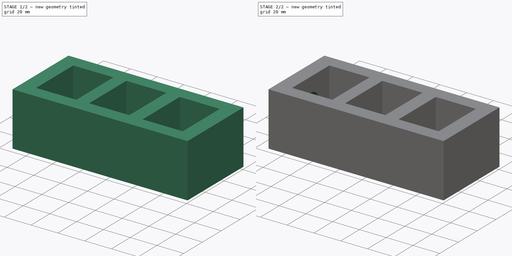
[diagram: build sequence overview — one tinted view per stage of 2, left to right]
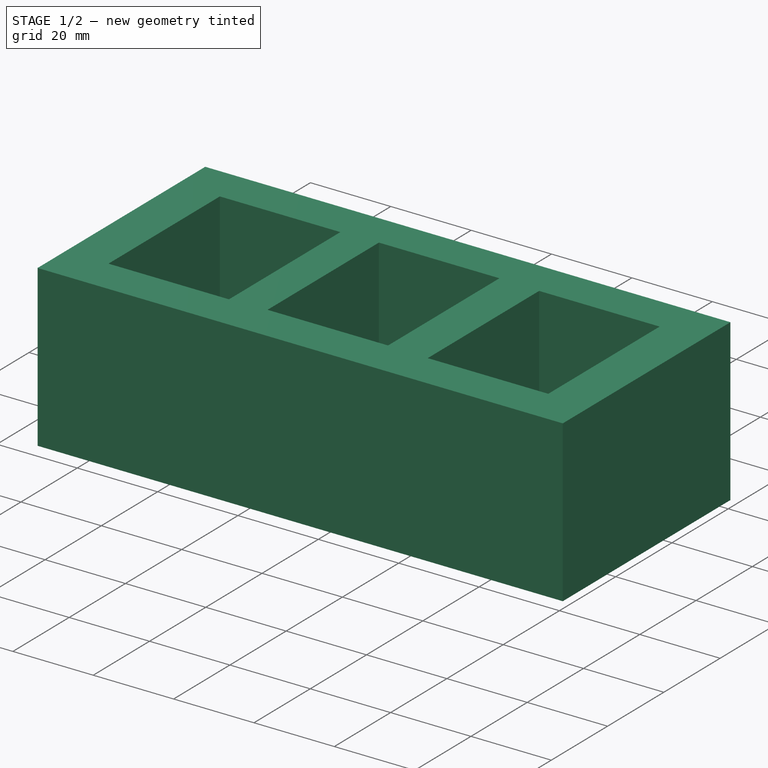
[diagram: stage 1 of 2 — iso view after this stage's code; geometry added in this stage tinted green]
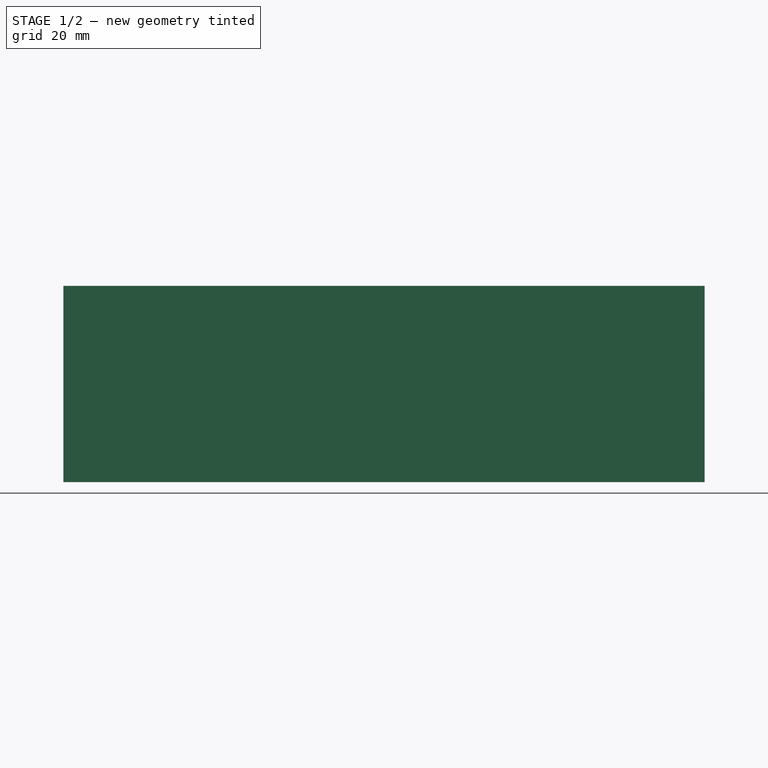
[diagram: stage 1 of 2 — front view after this stage's code; geometry added in this stage tinted green]
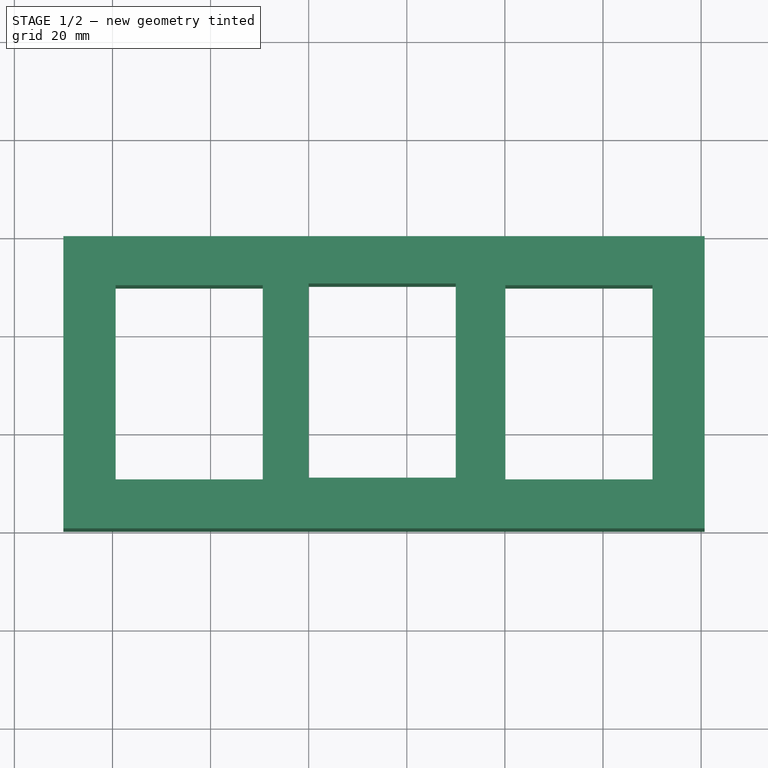
[diagram: stage 1 of 2 — top view after this stage's code; geometry added in this stage tinted green]
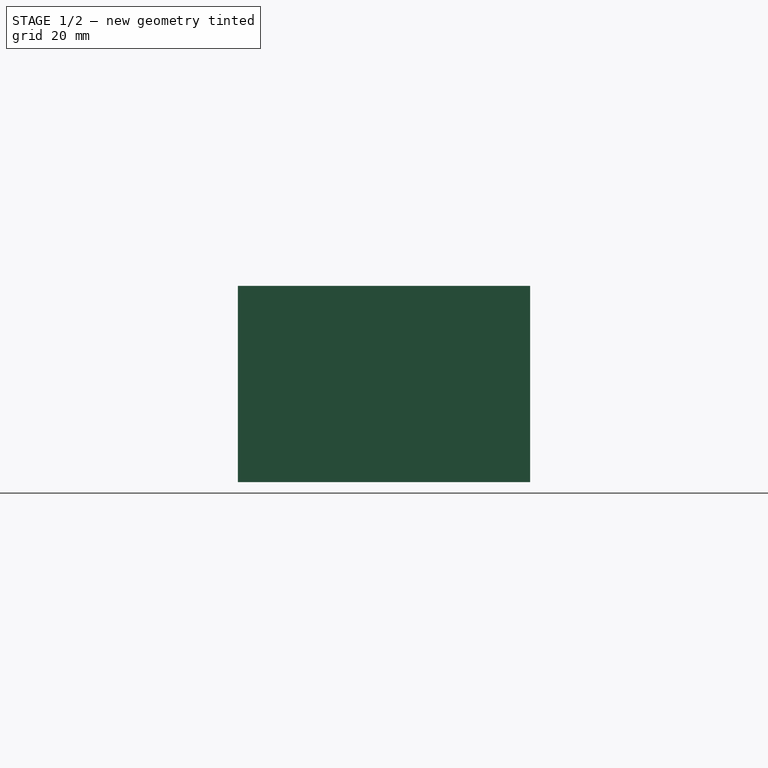
[diagram: stage 1 of 2 — right view after this stage's code; geometry added in this stage tinted green]
FCSTD DOCUMENT  (FreeCAD 0.21R33694 (Git))
Label: gcasna_repte_exercici02_Robo2
License: All rights reserved
LicenseURL: http://en.wikipedia.org/wiki/All_rights_reserved
objects: Sketcher::SketchObject×2, PartDesign::Pad×1, PartDesign::Pocket×1, PartDesign::Body×1
note: 7 computed .brp shape members not serialized (recipe doc carries the construction recipe); baked Part::Feature solids carry a one-line shape summary decoded from their .brp

FEATURE [Sketcher::SketchObject] Sketch
  FullyConstrained = false
  MapMode = 5
  Support = -> [XY_Plane]
  sketch-geometry (16):
    g0: LineSegment StartX=-70 StartY=39.7819 StartZ=0 EndX=60.7071 EndY=39.7819 EndZ=0
    g1: LineSegment StartX=60.7071 StartY=39.7819 StartZ=0 EndX=60.7071 EndY=-19.8015 EndZ=0
    g2: LineSegment StartX=60.7071 StartY=-19.8015 StartZ=0 EndX=-70 EndY=-19.8015 EndZ=0
    g3: LineSegment StartX=-70 StartY=-19.8015 StartZ=0 EndX=-70 EndY=39.7819 EndZ=0
    g4: LineSegment StartX=-59.3574 StartY=29.7819 StartZ=0 EndX=-29.3574 EndY=29.7819 EndZ=0
    g5: LineSegment StartX=-29.3574 StartY=29.7819 StartZ=0 EndX=-29.3574 EndY=-9.80149 EndZ=0
    g6: LineSegment StartX=-29.3574 StartY=-9.80149 StartZ=0 EndX=-59.3574 EndY=-9.80149 EndZ=0
    g7: LineSegment StartX=-59.3574 StartY=-9.80149 StartZ=0 EndX=-59.3574 EndY=29.7819 EndZ=0
    g8: LineSegment StartX=-20.0231 StartY=30.1429 StartZ=0 EndX=9.97685 EndY=30.1429 EndZ=0
    g9: LineSegment StartX=9.97685 StartY=30.1429 StartZ=0 EndX=9.97685 EndY=-9.44044 EndZ=0
    g10: LineSegment StartX=9.97685 StartY=-9.44044 StartZ=0 EndX=-20.0231 EndY=-9.44044 EndZ=0
    g11: LineSegment StartX=-20.0231 StartY=-9.44044 StartZ=0 EndX=-20.0231 EndY=30.1429 EndZ=0
    g12: LineSegment StartX=20.101 StartY=29.7819 StartZ=0 EndX=50.101 EndY=29.7819 EndZ=0
    g13: LineSegment StartX=50.101 StartY=29.7819 StartZ=0 EndX=50.101 EndY=-9.80149 EndZ=0
    g14: LineSegment StartX=50.101 StartY=-9.80149 StartZ=0 EndX=20.101 EndY=-9.80149 EndZ=0
    g15: LineSegment StartX=20.101 StartY=-9.80149 StartZ=0 EndX=20.101 EndY=29.7819 EndZ=0
  constraints (36):
    c: Horizontal(g0)
    c: Coincident(g0,g1)
    c: Coincident(g1,g2)
    c: Horizontal(g2)
    c: Coincident(g2,g3)
    c: Coincident(g3,g0)
    c: Vertical(g3)
    c: Vertical(g1)
    c: Coincident(g4,g5)
    c: Coincident(g5,g6)
    c: Coincident(g6,g7)
    c: Coincident(g7,g4)
    c: Horizontal(g4)
    c: Horizontal(g6)
    c: Vertical(g5)
    c: Vertical(g7)
    c: Coincident(g8,g9)
    c: Coincident(g9,g10)
    c: Coincident(g10,g11)
    c: Coincident(g11,g8)
    c: Horizontal(g8)
    c: Horizontal(g10)
    c: Vertical(g9)
    c: Vertical(g11)
    c: Coincident(g12,g13)
    c: Coincident(g13,g14)
    c: Coincident(g14,g15)
    c: Coincident(g15,g12)
    c: Horizontal(g12)
    c: Horizontal(g14)
    c: Vertical(g13)
    c: Vertical(g15)
    c: Equal(g4,g8)
    c: Equal(g8,g12)
    c: Equal(g5,g11)
    c: Equal(g11,g15)
FEATURE [PartDesign::Pad] Pad
  Direction = (0,0,1)
  Length = 40
  Length2 = 10
  Profile = -> Sketch
  ReferenceAxis = -> Sketch [N_Axis]
  Type = 0
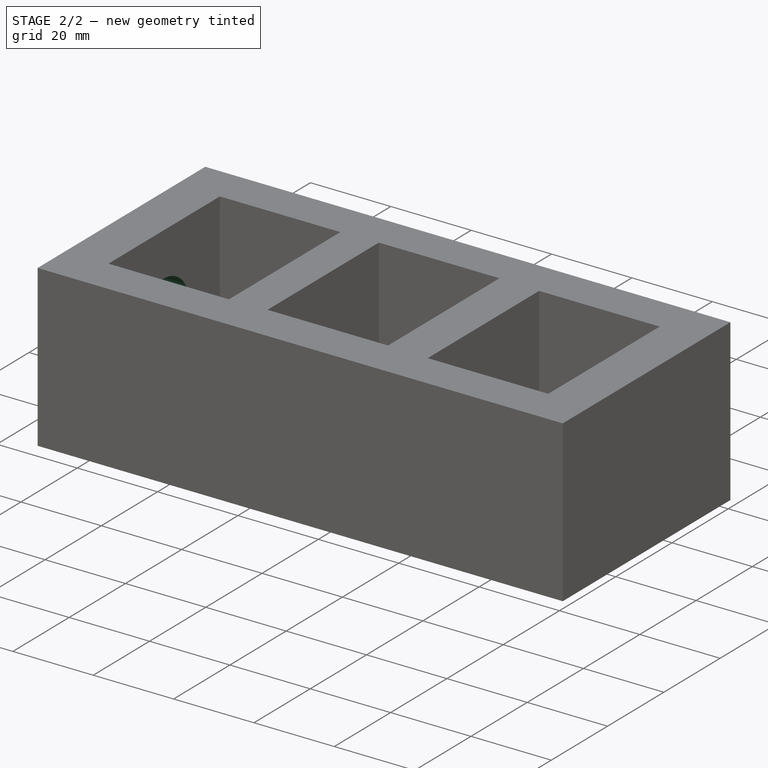
[diagram: stage 2 of 2 — iso view after this stage's code; geometry added in this stage tinted green]
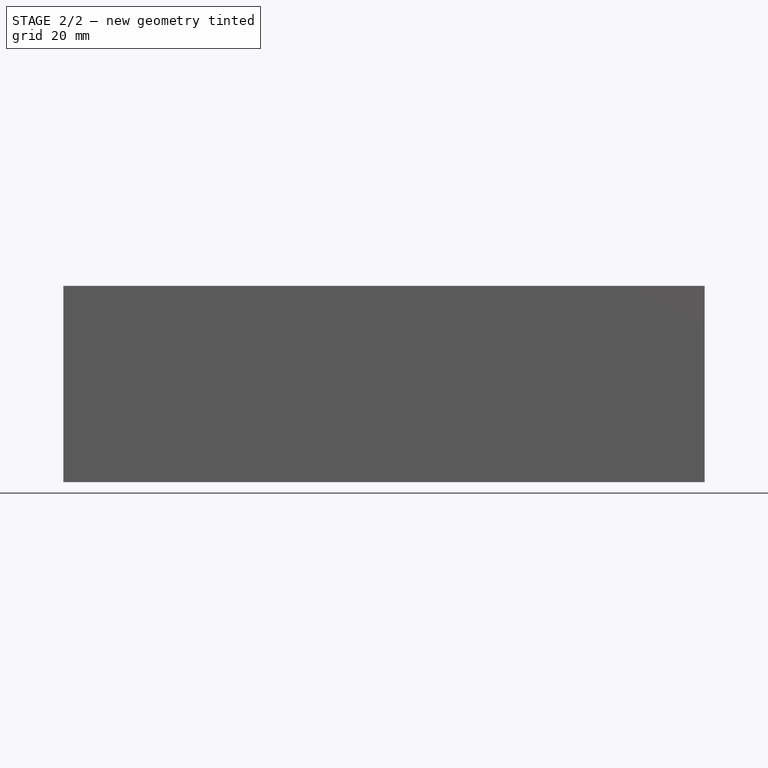
[diagram: stage 2 of 2 — front view after this stage's code; geometry added in this stage tinted green]
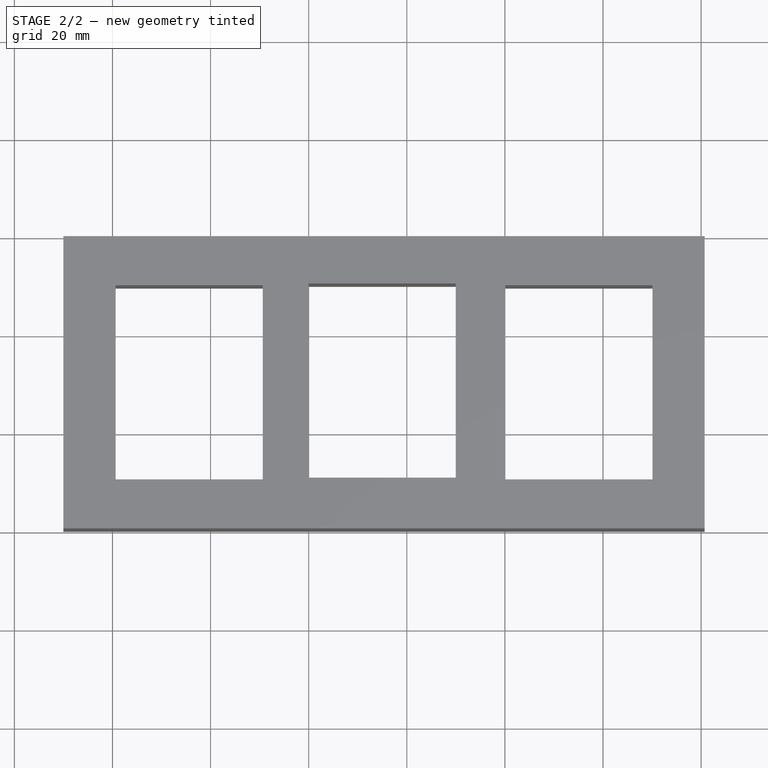
[diagram: stage 2 of 2 — top view after this stage's code; geometry added in this stage tinted green]
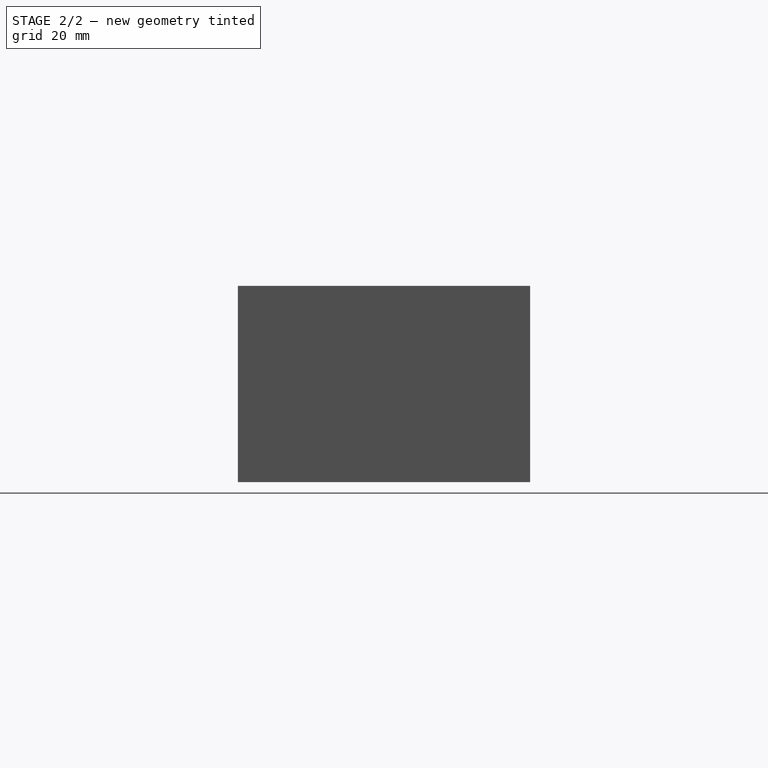
[diagram: stage 2 of 2 — right view after this stage's code; geometry added in this stage tinted green]
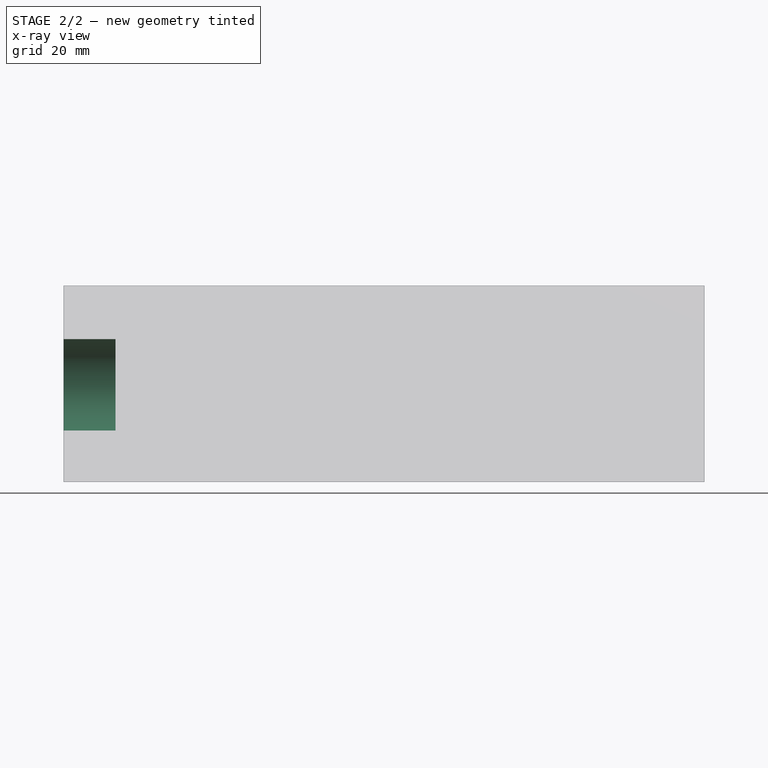
[diagram: stage 2 of 2 — x-ray composite at the front view; earlier geometry ghosted, this stage's added geometry solid]
FEATURE [Sketcher::SketchObject] Sketch001
  FullyConstrained = false
  MapMode = 5
  Placement = pos=(-70,0,0) rot=(0.57735,-0.57735,-0.57735;2.0944rad)
  Support = -> [Pad]
  sketch-geometry (1):
    g0: Circle CenterX=-9.66533 CenterY=19.7956 CenterZ=0 NormalX=0 NormalY=0 NormalZ=1 AngleXU=0 Radius=9.3476
FEATURE [PartDesign::Pocket] Pocket
  BaseFeature = -> Pad
  Direction = (1,0,0)
  Length = 32
  Length2 = 5
  Profile = -> Sketch001
  ReferenceAxis = -> Sketch001 [N_Axis]
  Type = 0
FEATURE [PartDesign::Body] Body
  Group = -> [Sketch,Pad,Sketch001,Pocket]
  Origin = -> Origin
  Tip = -> Pocket
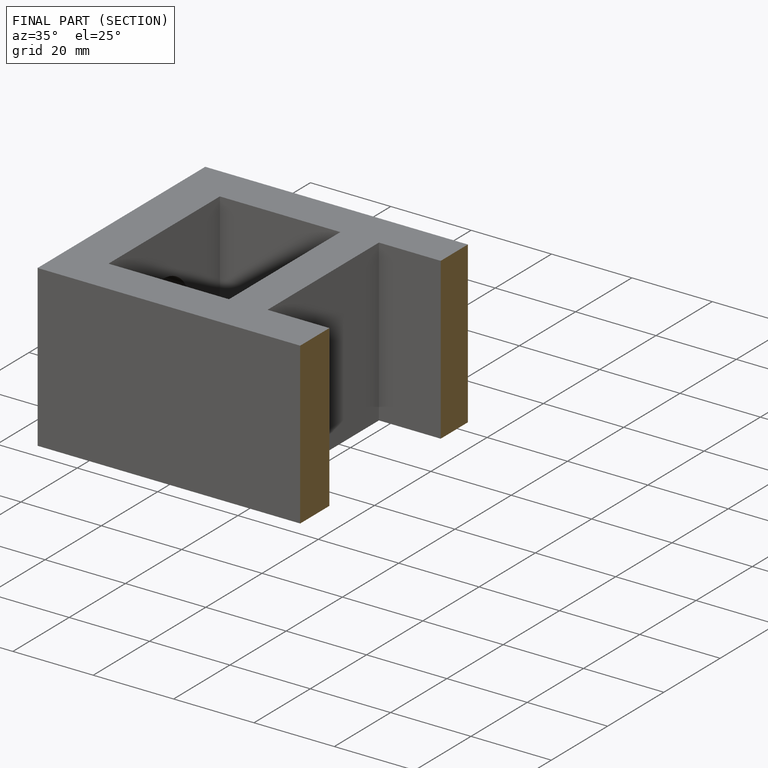
[diagram: finished part — half-section view (interior)]
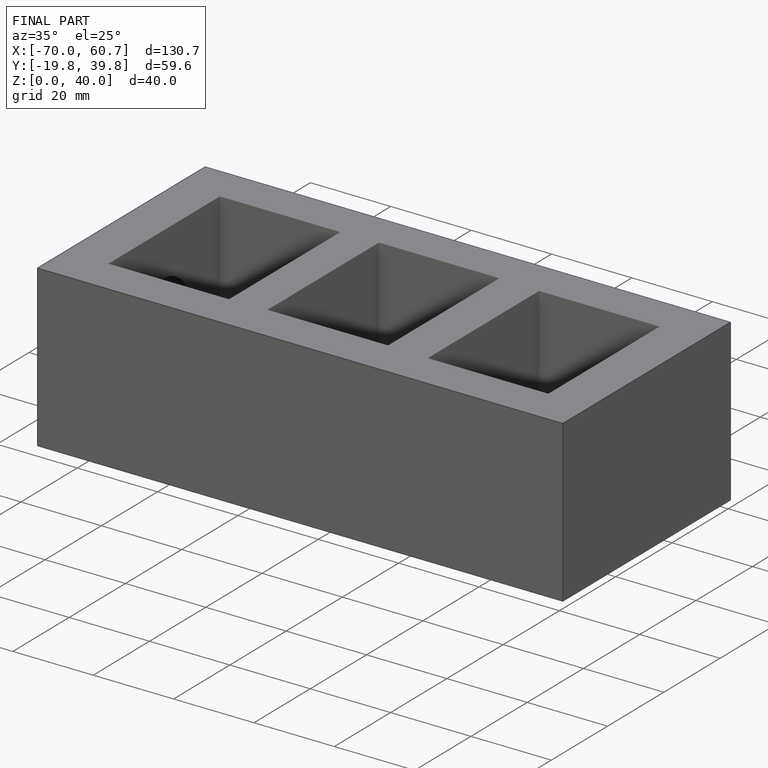
[diagram: finished part — iso view with bounding-box wireframe]
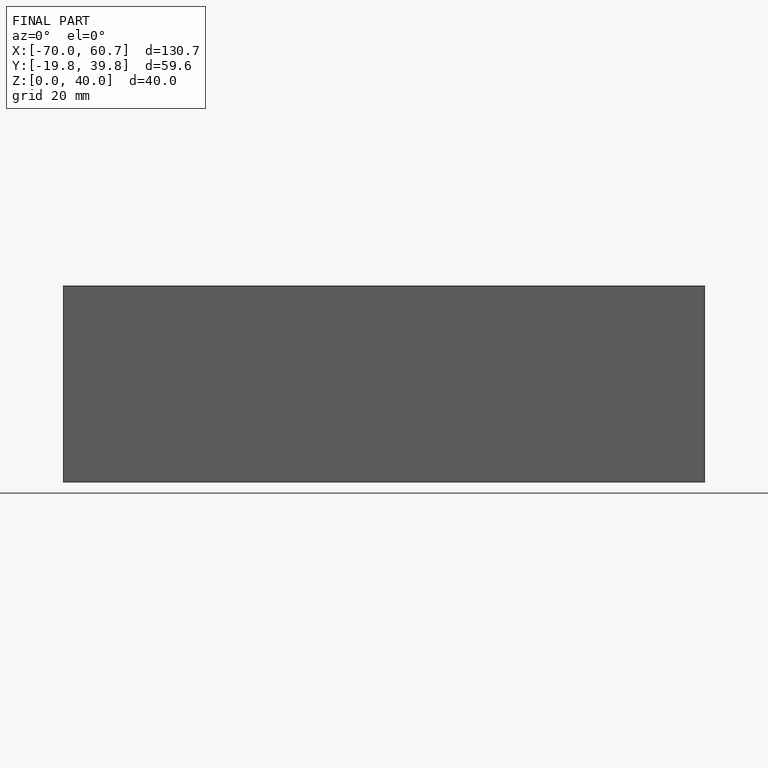
[diagram: finished part — front view with bounding-box wireframe]
